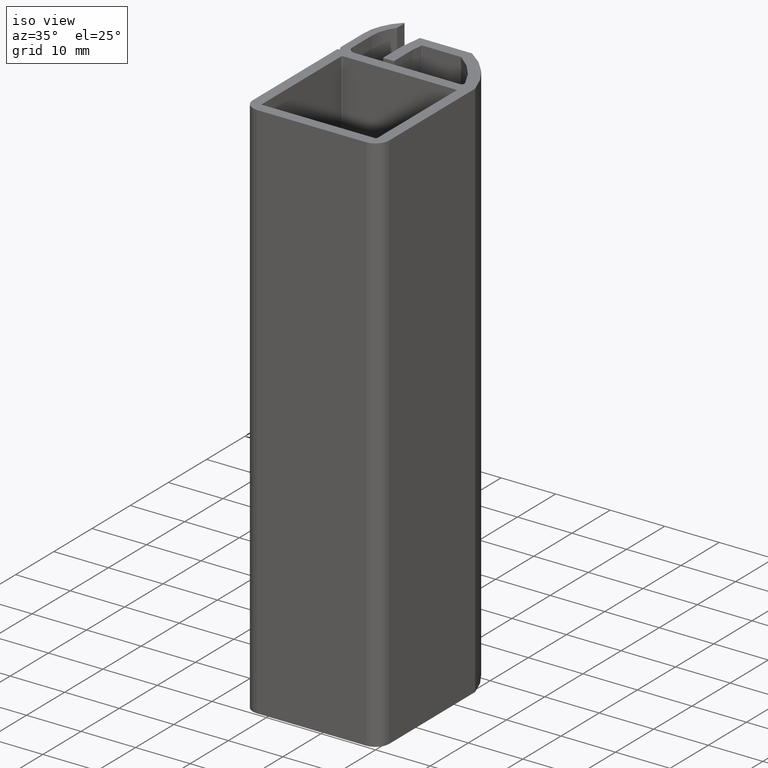
[diagram: clean part render]
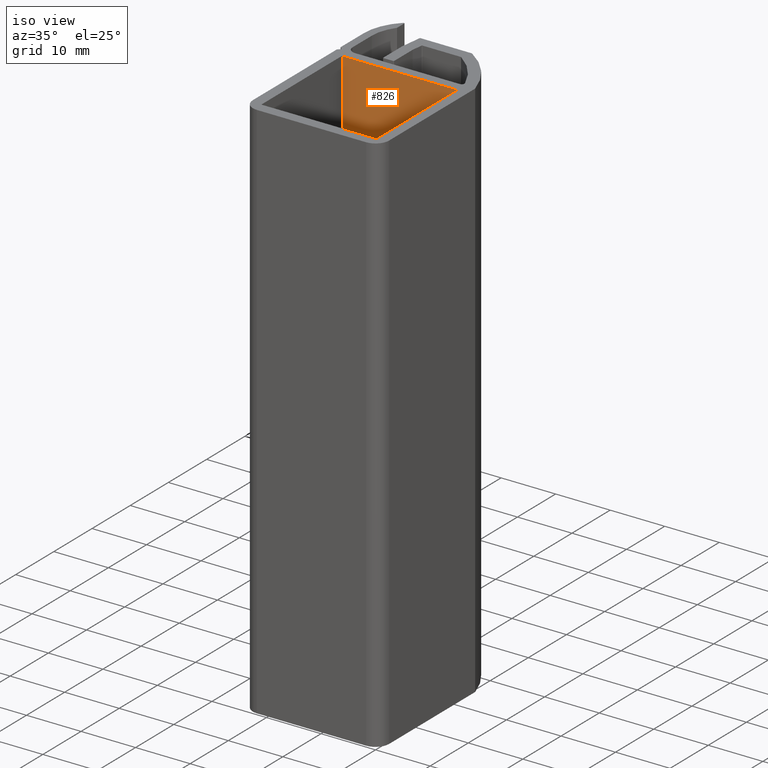
[diagram: same view with one face highlighted and labeled with its STEP entity id]
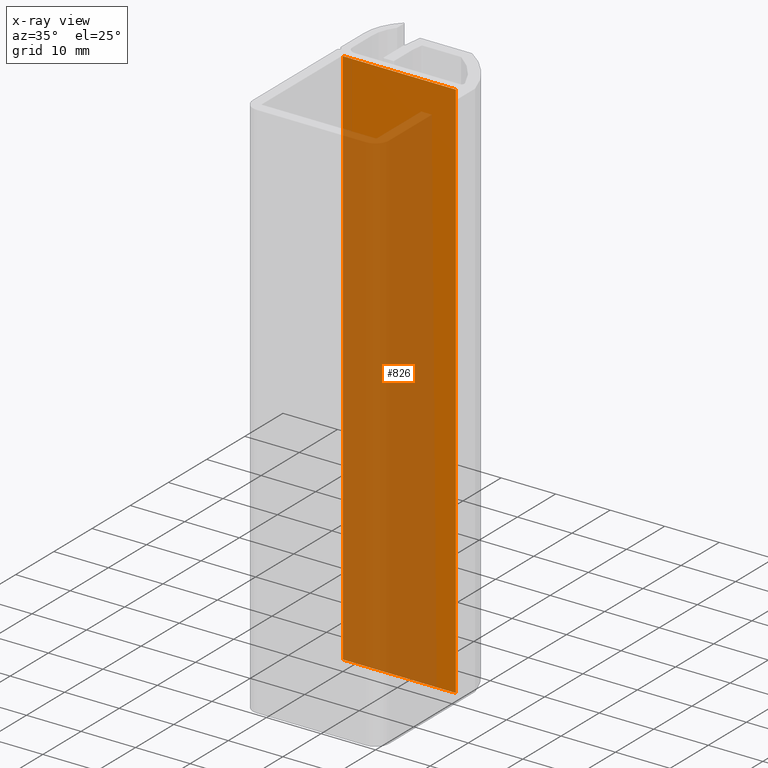
[diagram: x-ray of the same camera — body ghosted, the highlighted face saturated]
A machine part, iso view. The second image highlights one B-rep face of the part: STEP entity #826.
The next image is the same camera in x-ray: the body ghosted, the highlighted face saturated — about 73% of this face is hidden behind the body in this view.
In plain terms, the highlighted planar face has unit normal (0, 1, 0).
Its self-contained STEP definition (entity closure, byte-faithful):
#18=PLANE('',#894);
#43=FACE_OUTER_BOUND('',#87,.T.);
#87=EDGE_LOOP('',(#562,#563,#564,#565));
#177=LINE('',#1251,#261);
#178=LINE('',#1255,#262);
#179=LINE('',#1257,#263);
#180=LINE('',#1258,#264);
#261=VECTOR('',#992,10.);
#262=VECTOR('',#997,10.);
#263=VECTOR('',#998,10.);
#264=VECTOR('',#999,10.);
#346=VERTEX_POINT('',#1248);
#347=VERTEX_POINT('',#1250);
#348=VERTEX_POINT('',#1254);
#349=VERTEX_POINT('',#1256);
#432=EDGE_CURVE('',#346,#347,#177,.T.);
#434=EDGE_CURVE('',#348,#346,#178,.T.);
#435=EDGE_CURVE('',#348,#349,#179,.T.);
#436=EDGE_CURVE('',#347,#349,#180,.T.);
#562=ORIENTED_EDGE('',*,*,#432,.F.);
#563=ORIENTED_EDGE('',*,*,#434,.F.);
#564=ORIENTED_EDGE('',*,*,#435,.T.);
#565=ORIENTED_EDGE('',*,*,#436,.F.);
#826=ADVANCED_FACE('',(#43),#18,.F.);
#894=AXIS2_PLACEMENT_3D('',#1253,#995,#996);
#992=DIRECTION('',(0.,0.,1.));
#995=DIRECTION('center_axis',(2.78896605219848E-15,1.,0.));
#996=DIRECTION('ref_axis',(-1.,2.78896605219848E-15,0.));
#997=DIRECTION('',(-1.,2.78896605219848E-15,0.));
#998=DIRECTION('',(0.,0.,1.));
#999=DIRECTION('',(1.,-2.78896605219848E-15,0.));
#1248=CARTESIAN_POINT('',(-10.3499999999999,10.5499999999999,-50.));
#1250=CARTESIAN_POINT('',(-10.3499999999999,10.5499999999999,50.));
#1251=CARTESIAN_POINT('',(-10.3499999999999,10.5499999999999,0.));
#1253=CARTESIAN_POINT('Origin',(10.35,10.5499999999999,0.));
#1254=CARTESIAN_POINT('',(10.35,10.5499999999999,-50.));
#1255=CARTESIAN_POINT('',(4.59287853209466,10.5499999999999,-50.));
#1256=CARTESIAN_POINT('',(10.35,10.5499999999999,50.));
#1257=CARTESIAN_POINT('',(10.35,10.5499999999999,0.));
#1258=CARTESIAN_POINT('',(4.59287853209466,10.5499999999999,50.));